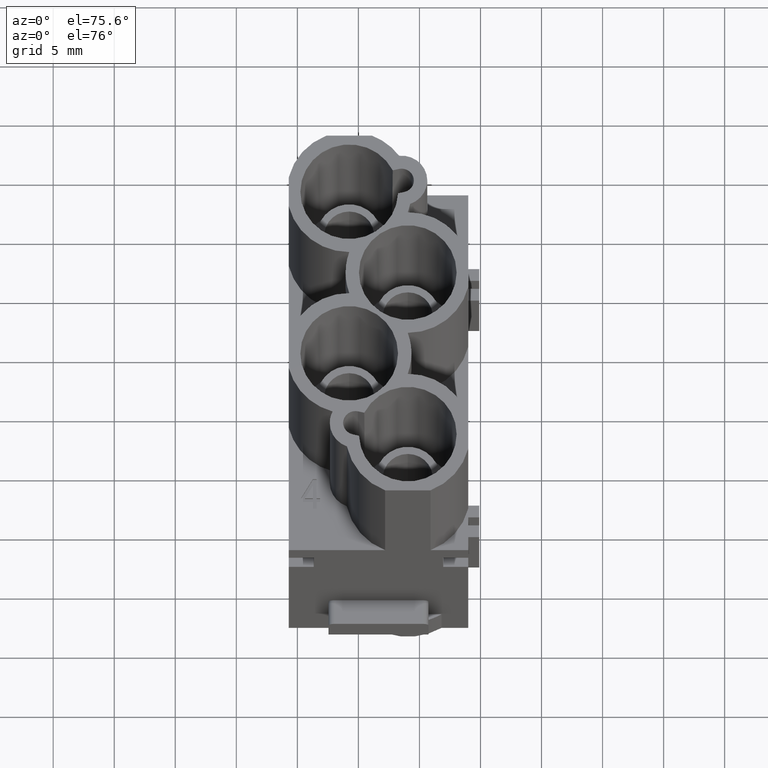
[diagram: clean part render]
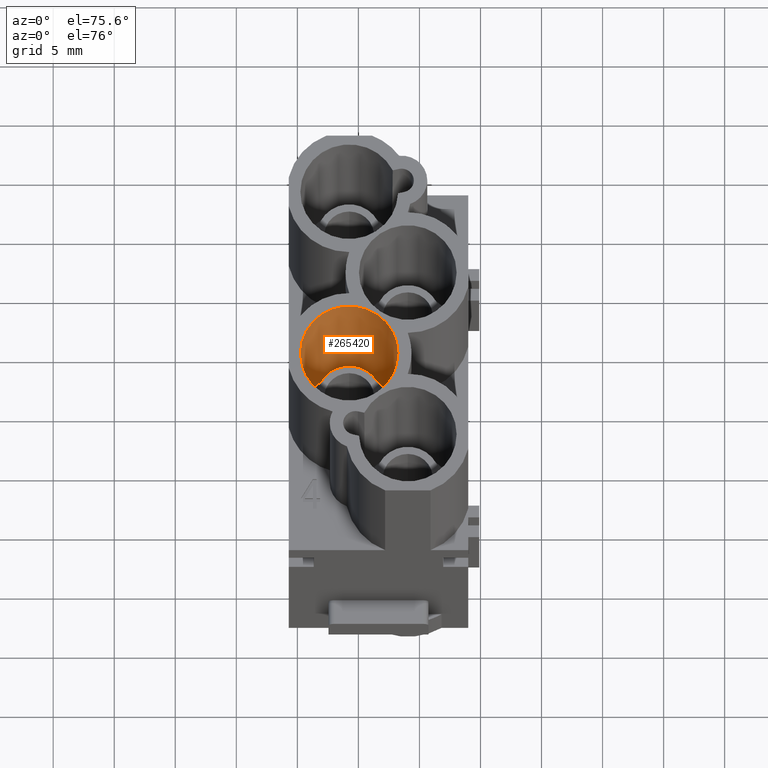
[diagram: same view with one face highlighted and labeled with its STEP entity id]
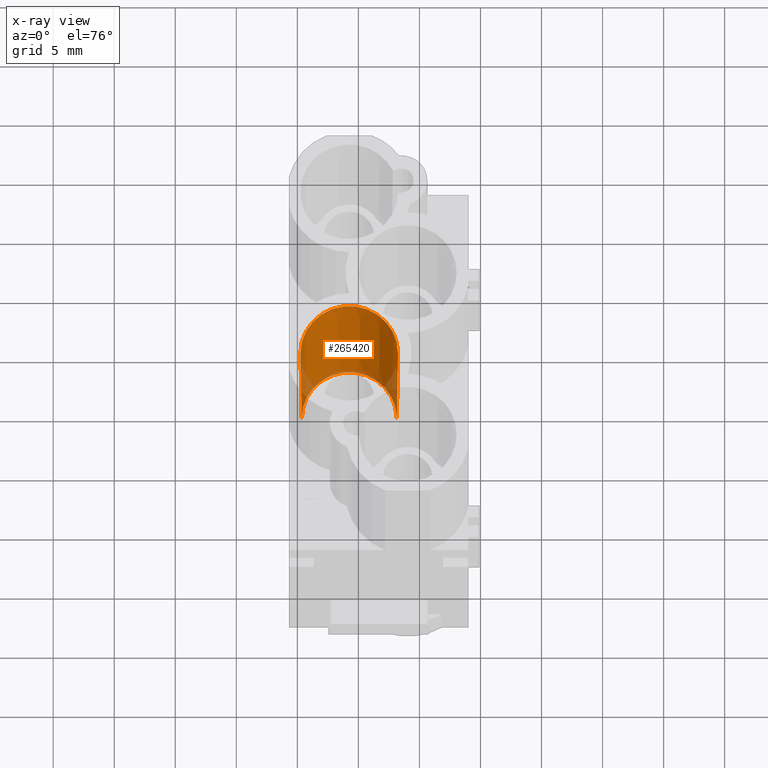
[diagram: x-ray of the same camera — body ghosted, the highlighted face saturated]
A machine part, auxiliary view. The second image highlights one B-rep face of the part: STEP entity #265420.
The next image is the same camera in x-ray: the body ghosted, the highlighted face saturated — about 10% of this face is hidden behind the body in this view.
In plain terms, the highlighted conical surface has half-angle 0.266 deg.
Its self-contained STEP definition (entity closure, byte-faithful):
#53530=CARTESIAN_POINT('',(46.2977350000001,38.5571830000001,
-20.4175407063047));
#53540=DIRECTION('',(0.,-1.,1.24758084999748E-14));
#53550=DIRECTION('',(-1.,-1.86986637132178E-30,-4.89858719658941E-16));
#53560=AXIS2_PLACEMENT_3D('',#53530,#53540,#53550);
#53570=CONICAL_SURFACE('',#53560,4.,0.00465112925110965);
#53580=CARTESIAN_POINT('',(42.2977350000001,38.5571830000001,
-20.4175407063047));
#53590=DIRECTION('',(-0.00465111248147871,-0.999989183517844,
1.24715425378812E-14));
#53600=VECTOR('',#53590,860.009302275205);
#53610=LINE('',#53580,#53600);
#53620=CARTESIAN_POINT('',(42.3977350000001,60.0571830000002,
-20.4175407063049));
#53630=VERTEX_POINT('',#53620);
#53640=CARTESIAN_POINT('',(42.2977350000001,38.5571830000001,
-20.4175407063047));
#53650=VERTEX_POINT('',#53640);
#53660=EDGE_CURVE('',#53630,#53650,#53610,.T.);
#53680=CARTESIAN_POINT('',(46.2977350000001,60.0571830000002,
-20.4175407063049));
#53690=DIRECTION('',(-4.24227485744583E-30,-1.,1.24773551709422E-14));
#53700=DIRECTION('',(1.,1.86986637132177E-30,4.8985871965894E-16));
#53710=AXIS2_PLACEMENT_3D('',#53680,#53690,#53700);
#53720=CIRCLE('',#53710,3.9);
#53730=CARTESIAN_POINT('',(50.1977350000001,60.0571830000002,
-20.4175407063049));
#53740=VERTEX_POINT('',#53730);
#53770=CARTESIAN_POINT('',(50.2977350000001,38.5571830000001,
-20.4175407063047));
#53780=DIRECTION('',(0.00465111248147871,-0.999989183517844,
1.24756735556148E-14));
#53790=VECTOR('',#53780,860.009302275205);
#53800=LINE('',#53770,#53790);
#53810=CARTESIAN_POINT('',(50.2977350000001,38.5571830000001,
-20.4175407063047));
#53820=VERTEX_POINT('',#53810);
#53830=EDGE_CURVE('',#53740,#53820,#53800,.T.);
#53850=CARTESIAN_POINT('',(46.2977350000001,38.5571830000001,
-20.4175407063047));
#53860=DIRECTION('',(-4.24227485744583E-30,-1.,1.24773551709422E-14));
#53870=DIRECTION('',(1.,-2.02943688242075E-29,-1.28649811974131E-15));
#53880=AXIS2_PLACEMENT_3D('',#53850,#53860,#53870);
#53890=CIRCLE('',#53880,4.);
#57680=EDGE_CURVE('',#53740,#53630,#53720,.T.);
#92790=EDGE_CURVE('',#53820,#53650,#53890,.T.);
#265360=ORIENTED_EDGE('',*,*,#57680,.F.);
#265370=ORIENTED_EDGE('',*,*,#53660,.F.);
#265380=ORIENTED_EDGE('',*,*,#92790,.T.);
#265390=ORIENTED_EDGE('',*,*,#53830,.T.);
#265400=EDGE_LOOP('',(#265390,#265380,#265370,#265360));
#265410=FACE_OUTER_BOUND('',#265400,.T.);
#265420=ADVANCED_FACE('',(#265410),#53570,.F.);